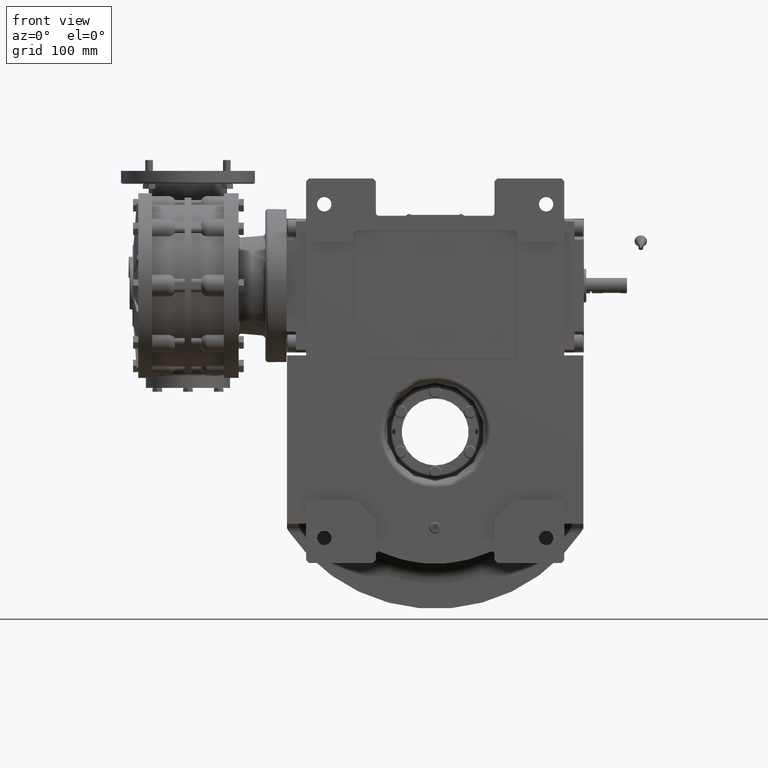
[diagram: clean part render]
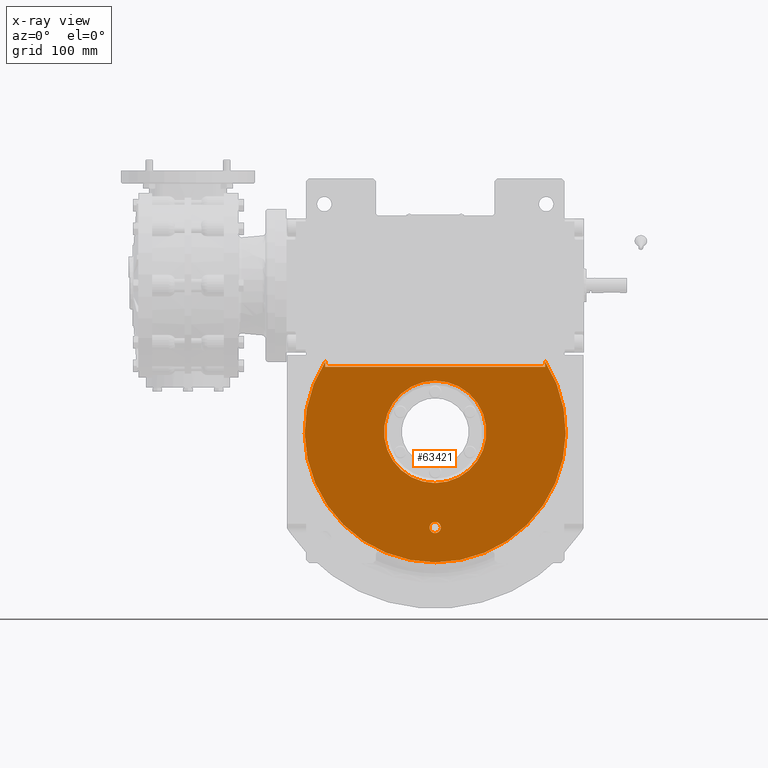
[diagram: x-ray — body ghosted, one internal face saturated and labeled with its STEP entity id]
A machine part, front view, then the same camera in x-ray: the body is ghosted and one INTERNAL B-rep face — a face not visible from any outside direction — is saturated and labeled: STEP entity #63421.
In plain terms, the highlighted planar face has unit normal (0, -1, 0).
Its self-contained STEP definition (entity closure, byte-faithful):
#1176 = VERTEX_POINT ( 'NONE', #44136 ) ;
#2044 = CARTESIAN_POINT ( 'NONE',  ( -5.875000000000000000, -63.00000000000000000, -100.0000000000000000 ) ) ;
#3019 = CARTESIAN_POINT ( 'NONE',  ( 0.000000000000000000, -63.00000000000000000, -100.0000000000000000 ) ) ;
#5101 = EDGE_CURVE ( 'NONE', #97820, #83496, #69235, .T. ) ;
#7163 = VECTOR ( 'NONE', #69346, 1000.000000000000000 ) ;
#9743 = AXIS2_PLACEMENT_3D ( 'NONE', #36648, #82093, #99010 ) ;
#9825 = CARTESIAN_POINT ( 'NONE',  ( 115.0000000000000000, -63.00000000000000000, 0.000000000000000000 ) ) ;
#10231 = CARTESIAN_POINT ( 'NONE',  ( -115.0000000000000000, -63.00000000000000000, 0.000000000000000000 ) ) ;
#11467 = CIRCLE ( 'NONE', #100807, 53.50000000000000000 ) ;
#11472 = EDGE_CURVE ( 'NONE', #83496, #108785, #90540, .T. ) ;
#12658 = DIRECTION ( 'NONE',  ( 0.000000000000000000, 1.000000000000000000, 0.000000000000000000 ) ) ;
#12988 = FACE_OUTER_BOUND ( 'NONE', #53031, .T. ) ;
#17997 = ORIENTED_EDGE ( 'NONE', *, *, #43714, .T. ) ;
#22557 = DIRECTION ( 'NONE',  ( 1.000000000000000000, -2.362176648138630895E-15, 0.000000000000000000 ) ) ;
#23623 = VERTEX_POINT ( 'NONE', #2044 ) ;
#24155 = AXIS2_PLACEMENT_3D ( 'NONE', #110865, #93972, #31030 ) ;
#31030 = DIRECTION ( 'NONE',  ( 0.000000000000000000, 1.836909530733564901E-16, 1.000000000000000000 ) ) ;
#32196 = CARTESIAN_POINT ( 'NONE',  ( 115.0000000000000000, -63.00000000000000000, 73.53400573884168523 ) ) ;
#33199 = ORIENTED_EDGE ( 'NONE', *, *, #11472, .T. ) ;
#33812 = CARTESIAN_POINT ( 'NONE',  ( 0.000000000000000000, -62.99999999999998579, 67.99999999999997158 ) ) ;
#33921 = VECTOR ( 'NONE', #98997, 1000.000000000000000 ) ;
#35527 = EDGE_CURVE ( 'NONE', #23623, #97120, #42760, .T. ) ;
#36051 = LINE ( 'NONE', #9825, #33921 ) ;
#36470 = DIRECTION ( 'NONE',  ( 0.000000000000000000, 0.000000000000000000, 1.000000000000000000 ) ) ;
#36648 = CARTESIAN_POINT ( 'NONE',  ( 0.000000000000000000, -63.00000000000000000, 0.000000000000000000 ) ) ;
#40046 = CARTESIAN_POINT ( 'NONE',  ( 0.000000000000000000, -63.00000000000000000, 0.000000000000000000 ) ) ;
#41746 = ORIENTED_EDGE ( 'NONE', *, *, #98975, .F. ) ;
#41766 = DIRECTION ( 'NONE',  ( 0.000000000000000000, 0.000000000000000000, 1.000000000000000000 ) ) ;
#42760 = CIRCLE ( 'NONE', #51966, 5.875000000000000000 ) ;
#43714 = EDGE_CURVE ( 'NONE', #97120, #23623, #48690, .T. ) ;
#44136 = CARTESIAN_POINT ( 'NONE',  ( -115.0000000000000000, -63.00000000000000000, 67.99999999999997158 ) ) ;
#44945 = EDGE_CURVE ( 'NONE', #97868, #85218, #78390, .T. ) ;
#45101 = ORIENTED_EDGE ( 'NONE', *, *, #5101, .T. ) ;
#48523 = FACE_BOUND ( 'NONE', #85168, .T. ) ;
#48690 = CIRCLE ( 'NONE', #50618, 5.875000000000000000 ) ;
#50618 = AXIS2_PLACEMENT_3D ( 'NONE', #84323, #91915, #22557 ) ;
#51966 = AXIS2_PLACEMENT_3D ( 'NONE', #3019, #64820, #56091 ) ;
#53031 = EDGE_LOOP ( 'NONE', ( #41746, #107914, #114215, #45101, #33199 ) ) ;
#56091 = DIRECTION ( 'NONE',  ( -1.000000000000000000, 0.000000000000000000, 0.000000000000000000 ) ) ;
#56396 = DIRECTION ( 'NONE',  ( 0.000000000000000000, 0.000000000000000000, 1.000000000000000000 ) ) ;
#63421 = ADVANCED_FACE ( 'NONE', ( #12988, #48523, #93403 ), #74148, .F. ) ;
#63985 = CARTESIAN_POINT ( 'NONE',  ( 0.000000000000000000, -63.00000000000000000, 0.000000000000000000 ) ) ;
#64820 = DIRECTION ( 'NONE',  ( 0.000000000000000000, -1.000000000000000000, 0.000000000000000000 ) ) ;
#66613 = EDGE_LOOP ( 'NONE', ( #90894, #93641 ) ) ;
#69235 = CIRCLE ( 'NONE', #9743, 136.5000000000000000 ) ;
#69346 = DIRECTION ( 'NONE',  ( -1.000000000000000000, 0.000000000000000000, 0.000000000000000000 ) ) ;
#72572 = LINE ( 'NONE', #10231, #78339 ) ;
#74148 = PLANE ( 'NONE',  #24155 ) ;
#75157 = EDGE_CURVE ( 'NONE', #92125, #1176, #113054, .T. ) ;
#77519 = AXIS2_PLACEMENT_3D ( 'NONE', #63985, #100687, #56396 ) ;
#77706 = CARTESIAN_POINT ( 'NONE',  ( 0.000000000000000000, -63.00000000000000000, -53.50000000000000000 ) ) ;
#78339 = VECTOR ( 'NONE', #36470, 1000.000000000000000 ) ;
#78390 = CIRCLE ( 'NONE', #89549, 53.50000000000000000 ) ;
#80751 = CARTESIAN_POINT ( 'NONE',  ( 5.875000000000000000, -63.00000000000000000, -100.0000000000000000 ) ) ;
#82093 = DIRECTION ( 'NONE',  ( 0.000000000000000000, 1.000000000000000000, 0.000000000000000000 ) ) ;
#83496 = VERTEX_POINT ( 'NONE', #92418 ) ;
#84323 = CARTESIAN_POINT ( 'NONE',  ( 0.000000000000000000, -63.00000000000000000, -100.0000000000000000 ) ) ;
#85168 = EDGE_LOOP ( 'NONE', ( #17997, #91561 ) ) ;
#85218 = VERTEX_POINT ( 'NONE', #77706 ) ;
#86896 = DIRECTION ( 'NONE',  ( 0.000000000000000000, 0.000000000000000000, 1.000000000000000000 ) ) ;
#89026 = EDGE_CURVE ( 'NONE', #85218, #97868, #11467, .T. ) ;
#89549 = AXIS2_PLACEMENT_3D ( 'NONE', #40046, #12658, #41766 ) ;
#90540 = CIRCLE ( 'NONE', #77519, 136.5000000000000000 ) ;
#90894 = ORIENTED_EDGE ( 'NONE', *, *, #89026, .F. ) ;
#91561 = ORIENTED_EDGE ( 'NONE', *, *, #35527, .T. ) ;
#91915 = DIRECTION ( 'NONE',  ( -1.209434443846979996E-15, -1.000000000000000000, 1.209434443846979996E-15 ) ) ;
#92125 = VERTEX_POINT ( 'NONE', #107720 ) ;
#92418 = CARTESIAN_POINT ( 'NONE',  ( 0.000000000000000000, -63.00000000000000000, -136.5000000000000000 ) ) ;
#93403 = FACE_BOUND ( 'NONE', #66613, .T. ) ;
#93641 = ORIENTED_EDGE ( 'NONE', *, *, #44945, .F. ) ;
#93972 = DIRECTION ( 'NONE',  ( 0.000000000000000000, -1.000000000000000000, 1.836909530733564901E-16 ) ) ;
#94486 = DIRECTION ( 'NONE',  ( 0.000000000000000000, 1.000000000000000000, 0.000000000000000000 ) ) ;
#95618 = CARTESIAN_POINT ( 'NONE',  ( 0.000000000000000000, -63.00000000000000000, 0.000000000000000000 ) ) ;
#97120 = VERTEX_POINT ( 'NONE', #80751 ) ;
#97820 = VERTEX_POINT ( 'NONE', #32196 ) ;
#97868 = VERTEX_POINT ( 'NONE', #113229 ) ;
#98631 = CARTESIAN_POINT ( 'NONE',  ( -115.0000000000000000, -63.00000000000000000, 73.53400573884168523 ) ) ;
#98975 = EDGE_CURVE ( 'NONE', #1176, #108785, #72572, .T. ) ;
#98997 = DIRECTION ( 'NONE',  ( 0.000000000000000000, 0.000000000000000000, 1.000000000000000000 ) ) ;
#99010 = DIRECTION ( 'NONE',  ( 0.000000000000000000, 0.000000000000000000, 1.000000000000000000 ) ) ;
#100343 = EDGE_CURVE ( 'NONE', #92125, #97820, #36051, .T. ) ;
#100687 = DIRECTION ( 'NONE',  ( 0.000000000000000000, 1.000000000000000000, 0.000000000000000000 ) ) ;
#100807 = AXIS2_PLACEMENT_3D ( 'NONE', #95618, #94486, #86896 ) ;
#107720 = CARTESIAN_POINT ( 'NONE',  ( 115.0000000000000000, -63.00000000000000000, 67.99999999999997158 ) ) ;
#107914 = ORIENTED_EDGE ( 'NONE', *, *, #75157, .F. ) ;
#108785 = VERTEX_POINT ( 'NONE', #98631 ) ;
#110865 = CARTESIAN_POINT ( 'NONE',  ( 0.000000000000000000, -63.00000000000000000, 2.534751534906250014E-14 ) ) ;
#113054 = LINE ( 'NONE', #33812, #7163 ) ;
#113229 = CARTESIAN_POINT ( 'NONE',  ( 6.551860375438339893E-15, -63.00000000000000000, 53.50000000000000000 ) ) ;
#114215 = ORIENTED_EDGE ( 'NONE', *, *, #100343, .T. ) ;